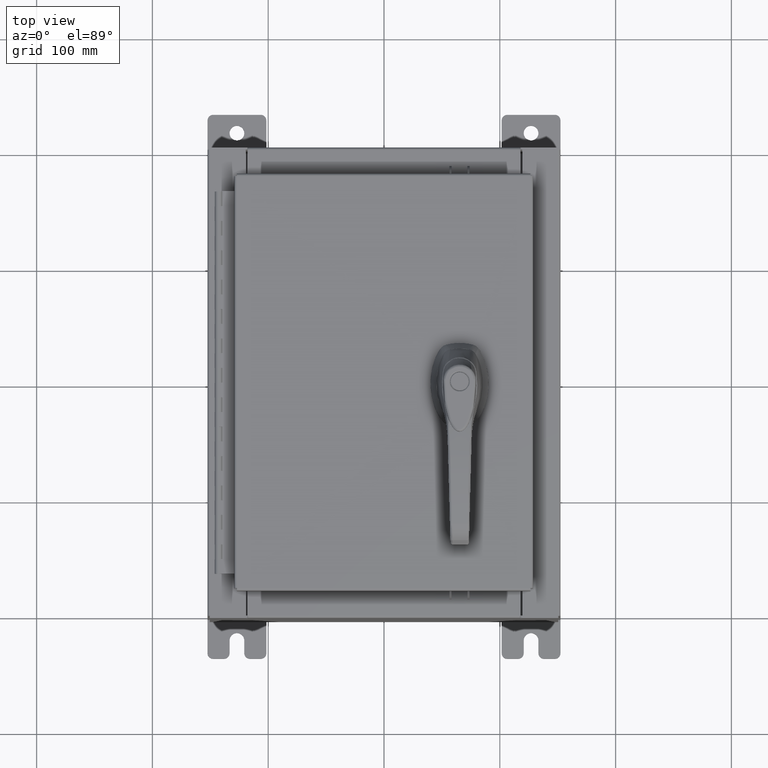
[diagram: clean part render]
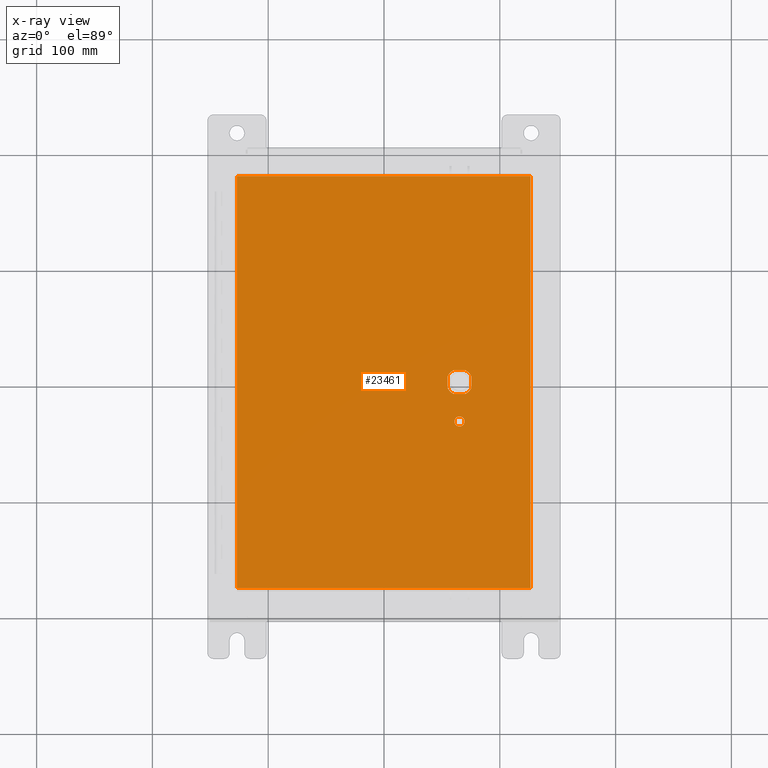
[diagram: x-ray — body ghosted, one internal face saturated and labeled with its STEP entity id]
A machine part, top view, then the same camera in x-ray: the body is ghosted and one INTERNAL B-rep face — a face not visible from any outside direction — is saturated and labeled: STEP entity #23461.
In plain terms, the highlighted planar face has unit normal (0, 0, -1).
Its self-contained STEP definition (entity closure, byte-faithful):
#1062 = AXIS2_PLACEMENT_3D ( 'NONE', #91966, #43018, #100179 ) ;
#1143 = AXIS2_PLACEMENT_3D ( 'NONE', #80700, #31747, #88896 ) ;
#2124 = LINE ( 'NONE', #60442, #23926 ) ;
#2516 = EDGE_CURVE ( 'NONE', #70997, #17608, #2124, .T. ) ;
#2688 = AXIS2_PLACEMENT_3D ( 'NONE', #72159, #23264, #80393 ) ;
#2754 = CARTESIAN_POINT ( 'NONE',  ( -4.990300000000000400, 7.006300000000000400, -0.07470000000000019700 ) ) ;
#3576 = ORIENTED_EDGE ( 'NONE', *, *, #59835, .F. ) ;
#3690 = CARTESIAN_POINT ( 'NONE',  ( 4.990299999999998600, 7.006300000000000400, -0.07470000000000021100 ) ) ;
#3891 = ORIENTED_EDGE ( 'NONE', *, *, #90688, .F. ) ;
#4064 = EDGE_CURVE ( 'NONE', #28377, #29222, #68495, .T. ) ;
#6144 = PLANE ( 'NONE',  #14867 ) ;
#6315 = AXIS2_PLACEMENT_3D ( 'NONE', #32962, #90120, #41192 ) ;
#8076 = ORIENTED_EDGE ( 'NONE', *, *, #63453, .T. ) ;
#9925 = ORIENTED_EDGE ( 'NONE', *, *, #47322, .F. ) ;
#11306 = VERTEX_POINT ( 'NONE', #43989 ) ;
#11333 = VECTOR ( 'NONE', #50212, 39.37007874015748100 ) ;
#12191 = DIRECTION ( 'NONE',  ( -0.0000000000000000000, -0.0000000000000000000, 1.000000000000000000 ) ) ;
#12800 = FACE_BOUND ( 'NONE', #93006, .T. ) ;
#13257 = CARTESIAN_POINT ( 'NONE',  ( 0.0000000000000000000, -0.4029999999999252000, -0.07470000000000003000 ) ) ;
#14356 = CARTESIAN_POINT ( 'NONE',  ( 2.175000000000072700, -0.2002273707563079800, -0.07470000000000003000 ) ) ;
#14374 = DIRECTION ( 'NONE',  ( -1.000000000000000000, 0.0000000000000000000, -0.0000000000000000000 ) ) ;
#14867 = AXIS2_PLACEMENT_3D ( 'NONE', #54807, #63349, #14374 ) ;
#15127 = CARTESIAN_POINT ( 'NONE',  ( -4.990300000000000400, 7.006299999999998600, -0.07470000000000000300 ) ) ;
#16881 = CIRCLE ( 'NONE', #47989, 0.4499999999999156900 ) ;
#17608 = VERTEX_POINT ( 'NONE', #41260 ) ;
#20699 = CIRCLE ( 'NONE', #1062, 0.1715000000000000700 ) ;
#21521 = DIRECTION ( 'NONE',  ( 1.000000000000000000, 0.0000000000000000000, 0.0000000000000000000 ) ) ;
#22850 = CARTESIAN_POINT ( 'NONE',  ( 2.377772629243688900, 0.4029999999999252000, -0.07470000000000003000 ) ) ;
#23264 = DIRECTION ( 'NONE',  ( -0.0000000000000000000, -0.0000000000000000000, 1.000000000000000000 ) ) ;
#23461 = ADVANCED_FACE ( 'NONE', ( #12800, #80604, #99764 ), #6144, .T. ) ;
#23856 = EDGE_LOOP ( 'NONE', ( #59872, #9925, #95643, #3576 ) ) ;
#23911 = EDGE_CURVE ( 'NONE', #40148, #97727, #33227, .T. ) ;
#23926 = VECTOR ( 'NONE', #76861, 39.37007874015748100 ) ;
#24709 = CARTESIAN_POINT ( 'NONE',  ( 2.980999999999924400, 0.2002273707563080300, -0.07470000000000003000 ) ) ;
#25756 = CIRCLE ( 'NONE', #102019, 0.4499999999999156900 ) ;
#27067 = VECTOR ( 'NONE', #21521, 39.37007874015748100 ) ;
#27886 = DIRECTION ( 'NONE',  ( -0.0000000000000000000, -0.0000000000000000000, 1.000000000000000000 ) ) ;
#28377 = VERTEX_POINT ( 'NONE', #15127 ) ;
#28527 = EDGE_CURVE ( 'NONE', #55256, #32602, #38692, .T. ) ;
#29222 = VERTEX_POINT ( 'NONE', #48219 ) ;
#31747 = DIRECTION ( 'NONE',  ( -0.0000000000000000000, -0.0000000000000000000, 1.000000000000000000 ) ) ;
#32496 = CARTESIAN_POINT ( 'NONE',  ( 2.778227370756308100, -0.4029999999999252000, -0.07470000000000003000 ) ) ;
#32602 = VERTEX_POINT ( 'NONE', #101655 ) ;
#32962 = CARTESIAN_POINT ( 'NONE',  ( 2.577999999999998500, 0.0000000000000000000, -0.07470000000000003000 ) ) ;
#33227 = CIRCLE ( 'NONE', #2688, 0.1715000000000000700 ) ;
#33760 = CARTESIAN_POINT ( 'NONE',  ( 2.175000000000072700, 0.0000000000000000000, -0.07470000000000003000 ) ) ;
#34672 = CARTESIAN_POINT ( 'NONE',  ( -4.990300000000000400, -7.006300000000000400, -0.07470000000000021100 ) ) ;
#34993 = EDGE_CURVE ( 'NONE', #44253, #79939, #78893, .T. ) ;
#38692 = CIRCLE ( 'NONE', #6315, 0.4499999999999156900 ) ;
#40148 = VERTEX_POINT ( 'NONE', #42747 ) ;
#40433 = CARTESIAN_POINT ( 'NONE',  ( 0.0000000000000000000, 0.4029999999999252000, -0.07470000000000003000 ) ) ;
#40691 = VECTOR ( 'NONE', #91823, 39.37007874015748100 ) ;
#41068 = EDGE_CURVE ( 'NONE', #83085, #82653, #16881, .T. ) ;
#41192 = DIRECTION ( 'NONE',  ( -1.000000000000000000, 0.0000000000000000000, 0.0000000000000000000 ) ) ;
#41260 = CARTESIAN_POINT ( 'NONE',  ( 4.990299999999997700, 7.006300000000000400, -0.07470000000000000300 ) ) ;
#41727 = LINE ( 'NONE', #40433, #85164 ) ;
#42533 = CARTESIAN_POINT ( 'NONE',  ( 2.175000000000072700, 0.2002273707563080300, -0.07470000000000003000 ) ) ;
#42747 = CARTESIAN_POINT ( 'NONE',  ( 2.406499999999998500, -1.338000000000000100, -0.07470000000000003000 ) ) ;
#43018 = DIRECTION ( 'NONE',  ( -0.0000000000000000000, -0.0000000000000000000, 1.000000000000000000 ) ) ;
#43989 = CARTESIAN_POINT ( 'NONE',  ( 2.377772629243688900, -0.4029999999999250300, -0.07470000000000003000 ) ) ;
#44253 = VERTEX_POINT ( 'NONE', #32496 ) ;
#45659 = ORIENTED_EDGE ( 'NONE', *, *, #78763, .T. ) ;
#45856 = ORIENTED_EDGE ( 'NONE', *, *, #34993, .T. ) ;
#47322 = EDGE_CURVE ( 'NONE', #29222, #70997, #103329, .T. ) ;
#47989 = AXIS2_PLACEMENT_3D ( 'NONE', #61185, #12191, #69392 ) ;
#48219 = CARTESIAN_POINT ( 'NONE',  ( -4.990299999999999500, -7.006300000000000400, -0.07470000000000000300 ) ) ;
#50212 = DIRECTION ( 'NONE',  ( 0.0000000000000000000, -1.000000000000000000, 0.0000000000000000000 ) ) ;
#52766 = CARTESIAN_POINT ( 'NONE',  ( 2.980999999999924400, -0.2002273707563078100, -0.07470000000000003000 ) ) ;
#53279 = ORIENTED_EDGE ( 'NONE', *, *, #86417, .T. ) ;
#54364 = ORIENTED_EDGE ( 'NONE', *, *, #96786, .T. ) ;
#54807 = CARTESIAN_POINT ( 'NONE',  ( 0.0000000000000000000, 0.0000000000000000000, -0.07470000000000000300 ) ) ;
#55256 = VERTEX_POINT ( 'NONE', #24709 ) ;
#57383 = EDGE_LOOP ( 'NONE', ( #45856, #3891, #58178, #45659, #65148, #54364, #53279, #8076 ) ) ;
#58178 = ORIENTED_EDGE ( 'NONE', *, *, #28527, .T. ) ;
#59835 = EDGE_CURVE ( 'NONE', #17608, #28377, #77260, .T. ) ;
#59872 = ORIENTED_EDGE ( 'NONE', *, *, #2516, .F. ) ;
#59984 = DIRECTION ( 'NONE',  ( 0.0000000000000000000, -1.000000000000000000, 0.0000000000000000000 ) ) ;
#60442 = CARTESIAN_POINT ( 'NONE',  ( 4.990299999999998600, -7.006300000000000400, -0.07469999999999966900 ) ) ;
#60887 = DIRECTION ( 'NONE',  ( -1.000000000000000000, -0.0000000000000000000, -0.0000000000000000000 ) ) ;
#61185 = CARTESIAN_POINT ( 'NONE',  ( 2.577999999999998500, 0.0000000000000000000, -0.07470000000000003000 ) ) ;
#62684 = CARTESIAN_POINT ( 'NONE',  ( 2.980999999999924400, 4.067195627826724000E-015, -0.07470000000000003000 ) ) ;
#63349 = DIRECTION ( 'NONE',  ( 0.0000000000000000000, 0.0000000000000000000, -1.000000000000000000 ) ) ;
#63453 = EDGE_CURVE ( 'NONE', #11306, #44253, #70504, .T. ) ;
#65148 = ORIENTED_EDGE ( 'NONE', *, *, #41068, .T. ) ;
#65967 = VECTOR ( 'NONE', #59984, 39.37007874015748100 ) ;
#66044 = CARTESIAN_POINT ( 'NONE',  ( 4.990299999999998600, -7.006300000000000400, -0.07470000000000000300 ) ) ;
#68495 = LINE ( 'NONE', #2754, #65967 ) ;
#69392 = DIRECTION ( 'NONE',  ( -1.000000000000000000, 0.0000000000000000000, 0.0000000000000000000 ) ) ;
#70197 = EDGE_CURVE ( 'NONE', #97727, #40148, #20699, .T. ) ;
#70504 = LINE ( 'NONE', #13257, #27067 ) ;
#70997 = VERTEX_POINT ( 'NONE', #66044 ) ;
#72159 = CARTESIAN_POINT ( 'NONE',  ( 2.577999999999998500, -1.338000000000000100, -0.07470000000000003000 ) ) ;
#76831 = CARTESIAN_POINT ( 'NONE',  ( 2.577999999999998500, 0.0000000000000000000, -0.07470000000000003000 ) ) ;
#76861 = DIRECTION ( 'NONE',  ( 0.0000000000000000000, 1.000000000000000000, 0.0000000000000000000 ) ) ;
#77260 = LINE ( 'NONE', #3690, #79848 ) ;
#78763 = EDGE_CURVE ( 'NONE', #32602, #83085, #41727, .T. ) ;
#78893 = CIRCLE ( 'NONE', #1143, 0.4499999999999156900 ) ;
#79848 = VECTOR ( 'NONE', #60887, 39.37007874015748100 ) ;
#79939 = VERTEX_POINT ( 'NONE', #52766 ) ;
#80393 = DIRECTION ( 'NONE',  ( -1.000000000000000000, 0.0000000000000000000, 0.0000000000000000000 ) ) ;
#80604 = FACE_OUTER_BOUND ( 'NONE', #23856, .T. ) ;
#80700 = CARTESIAN_POINT ( 'NONE',  ( 2.577999999999998500, 0.0000000000000000000, -0.07470000000000003000 ) ) ;
#82653 = VERTEX_POINT ( 'NONE', #42533 ) ;
#83085 = VERTEX_POINT ( 'NONE', #22850 ) ;
#84075 = VECTOR ( 'NONE', #103757, 39.37007874015748100 ) ;
#85009 = DIRECTION ( 'NONE',  ( -1.000000000000000000, 8.881784197001256300E-016, 0.0000000000000000000 ) ) ;
#85164 = VECTOR ( 'NONE', #105433, 39.37007874015748100 ) ;
#86417 = EDGE_CURVE ( 'NONE', #88366, #11306, #25756, .T. ) ;
#88366 = VERTEX_POINT ( 'NONE', #14356 ) ;
#88896 = DIRECTION ( 'NONE',  ( -1.000000000000000000, 0.0000000000000000000, 0.0000000000000000000 ) ) ;
#90120 = DIRECTION ( 'NONE',  ( -0.0000000000000000000, -0.0000000000000000000, 1.000000000000000000 ) ) ;
#90688 = EDGE_CURVE ( 'NONE', #55256, #79939, #105809, .T. ) ;
#91823 = DIRECTION ( 'NONE',  ( 1.000000000000000000, -0.0000000000000000000, -0.0000000000000000000 ) ) ;
#91966 = CARTESIAN_POINT ( 'NONE',  ( 2.577999999999998500, -1.338000000000000100, -0.07470000000000003000 ) ) ;
#93006 = EDGE_LOOP ( 'NONE', ( #101021, #99497 ) ) ;
#93086 = CARTESIAN_POINT ( 'NONE',  ( 2.749499999999998500, -1.338000000000000100, -0.07470000000000003000 ) ) ;
#95643 = ORIENTED_EDGE ( 'NONE', *, *, #4064, .F. ) ;
#96786 = EDGE_CURVE ( 'NONE', #82653, #88366, #98308, .T. ) ;
#97727 = VERTEX_POINT ( 'NONE', #93086 ) ;
#98308 = LINE ( 'NONE', #33760, #11333 ) ;
#99497 = ORIENTED_EDGE ( 'NONE', *, *, #23911, .T. ) ;
#99764 = FACE_BOUND ( 'NONE', #57383, .T. ) ;
#100179 = DIRECTION ( 'NONE',  ( -1.000000000000000000, 0.0000000000000000000, 0.0000000000000000000 ) ) ;
#101021 = ORIENTED_EDGE ( 'NONE', *, *, #70197, .T. ) ;
#101655 = CARTESIAN_POINT ( 'NONE',  ( 2.778227370756308100, 0.4029999999999250300, -0.07470000000000003000 ) ) ;
#102019 = AXIS2_PLACEMENT_3D ( 'NONE', #76831, #27886, #85009 ) ;
#103329 = LINE ( 'NONE', #34672, #40691 ) ;
#103757 = DIRECTION ( 'NONE',  ( 1.364372904336406500E-015, -1.000000000000000000, 0.0000000000000000000 ) ) ;
#105433 = DIRECTION ( 'NONE',  ( -1.000000000000000000, 0.0000000000000000000, 0.0000000000000000000 ) ) ;
#105809 = LINE ( 'NONE', #62684, #84075 ) ;